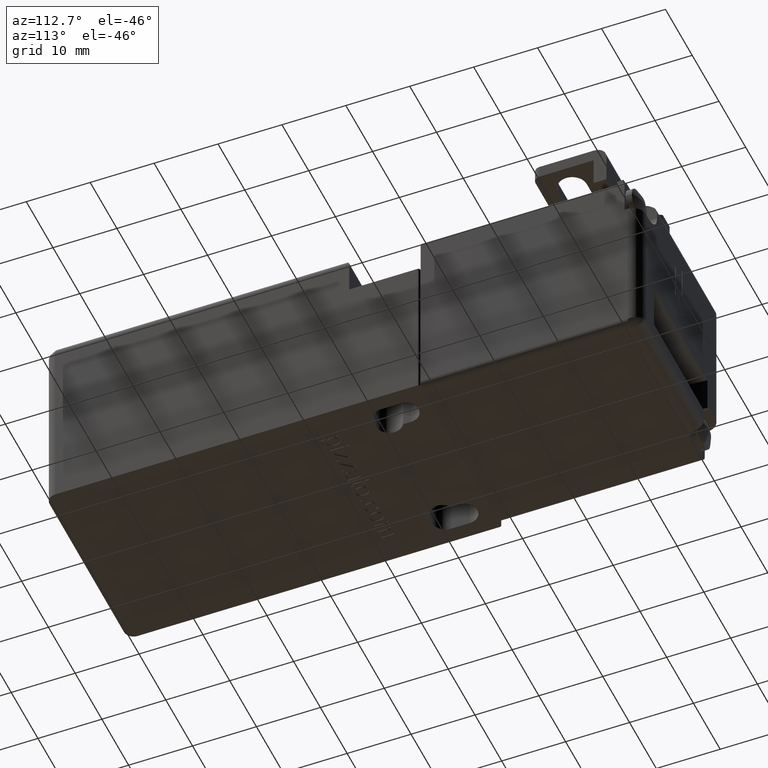
[diagram: clean part render]
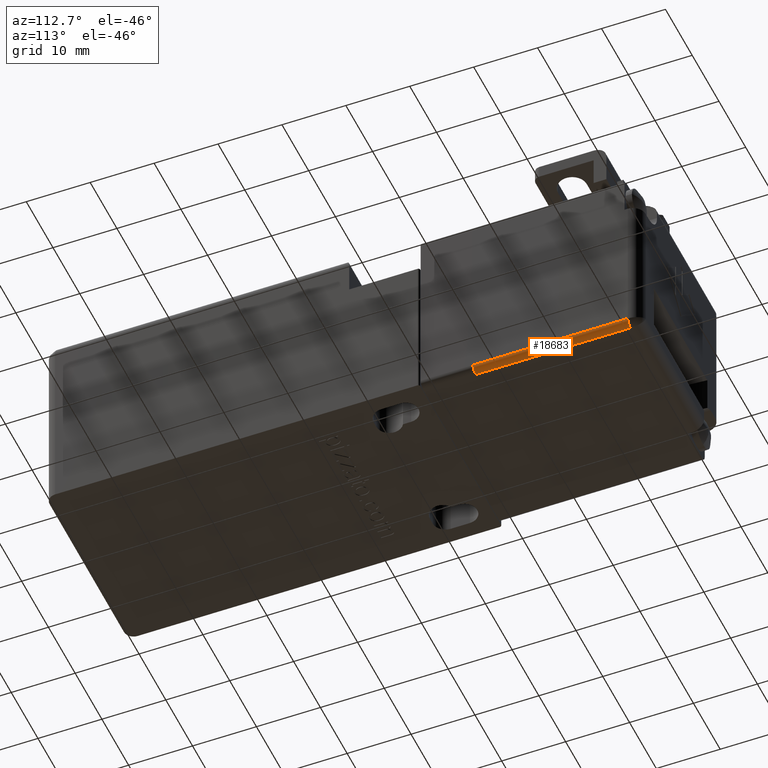
[diagram: same view with one face highlighted and labeled with its STEP entity id]
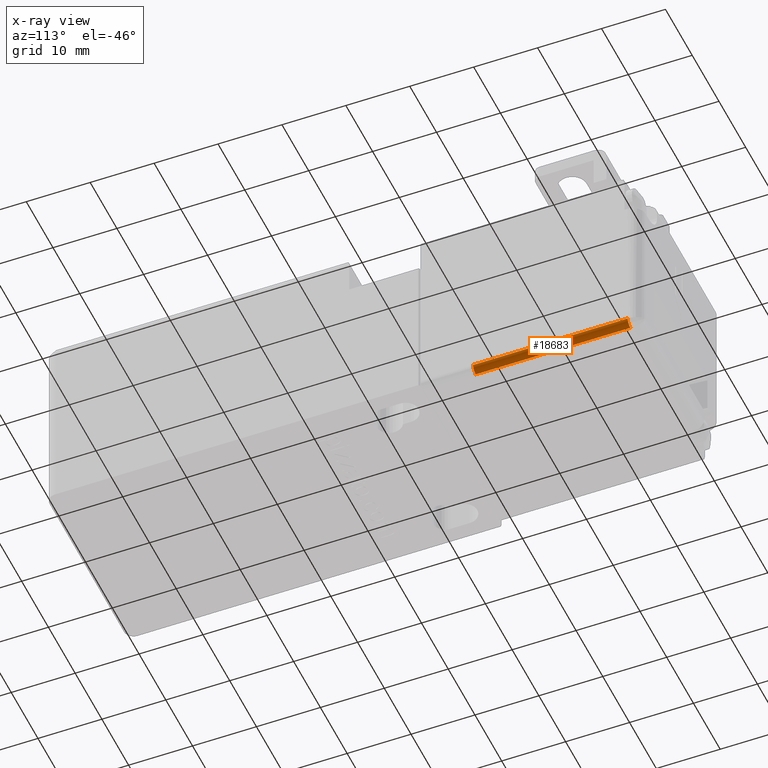
[diagram: x-ray of the same camera — body ghosted, the highlighted face saturated]
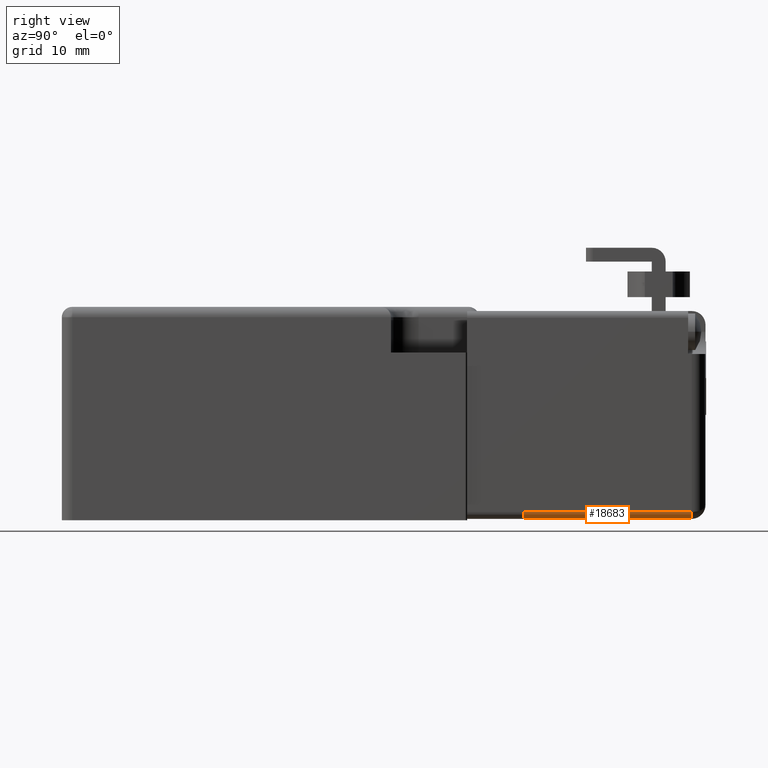
[diagram: same view with one face highlighted and labeled with its STEP entity id]
A machine part, auxiliary view. The second image highlights one B-rep face of the part: STEP entity #18683.
The next image is the same camera in x-ray: the body ghosted, the highlighted face saturated — about 0% of this face is hidden behind the body in this view.
A second angle (right view) of the same face is appended — the face is thin or edge-on in the first view.
In plain terms, the highlighted cylindrical surface (edge-blend (fillet) strip) has radius 1 mm, axis along (0, 1, 0).
Its self-contained STEP definition (entity closure, byte-faithful):
#17210=CARTESIAN_POINT('',(11.399999999999983,-24.200000000000006,-5.329071E-015));
#17211=VERTEX_POINT('',#17210);
#17218=CARTESIAN_POINT('',(12.399999999999986,-24.200000000000006,0.999999999999996));
#17219=VERTEX_POINT('',#17218);
#17220=CARTESIAN_POINT('',(11.399999999999983,-24.200000000000006,0.999999999999996));
#17221=DIRECTION('',(0.0,-1.0,0.0));
#17222=DIRECTION('',(-1.0,0.0,0.0));
#17223=AXIS2_PLACEMENT_3D('',#17220,#17221,#17222);
#17224=CIRCLE('',#17223,0.999999999999999);
#17225=EDGE_CURVE('',#17211,#17219,#17224,.T.);
#17742=CARTESIAN_POINT('',(12.399999999999995,0.0,1.000000000000005));
#17743=VERTEX_POINT('',#17742);
#17744=CARTESIAN_POINT('',(12.399999999999986,-24.200000000000006,0.999999999999996));
#17745=DIRECTION('',(0.0,1.0,0.0));
#17746=VECTOR('',#17745,24.200000000000006);
#17747=LINE('',#17744,#17746);
#17748=EDGE_CURVE('',#17219,#17743,#17747,.T.);
#17860=CARTESIAN_POINT('',(11.400000000000000,0.0,5.329071E-015));
#17861=VERTEX_POINT('',#17860);
#17868=CARTESIAN_POINT('',(11.399999999999983,0.0,-5.329071E-015));
#17869=DIRECTION('',(0.0,-1.0,0.0));
#17870=VECTOR('',#17869,24.200000000000006);
#17871=LINE('',#17868,#17870);
#17872=EDGE_CURVE('',#17861,#17211,#17871,.T.);
#18666=CARTESIAN_POINT('',(11.399999999999983,-24.200000010000007,0.999999999999996));
#18667=DIRECTION('',(0.0,1.0,0.0));
#18668=DIRECTION('',(-0.707106781186547,0.0,0.707106781186548));
#18669=AXIS2_PLACEMENT_3D('',#18666,#18667,#18668);
#18670=CYLINDRICAL_SURFACE('',#18669,0.999999999999999);
#18671=ORIENTED_EDGE('',*,*,#17872,.F.);
#18672=CARTESIAN_POINT('',(11.399999999999995,0.0,1.000000000000011));
#18673=DIRECTION('',(0.0,-1.0,0.0));
#18674=DIRECTION('',(-1.0,0.0,0.0));
#18675=AXIS2_PLACEMENT_3D('',#18672,#18673,#18674);
#18676=CIRCLE('',#18675,0.999999999999999);
#18677=EDGE_CURVE('',#17861,#17743,#18676,.T.);
#18678=ORIENTED_EDGE('',*,*,#18677,.T.);
#18679=ORIENTED_EDGE('',*,*,#17748,.F.);
#18680=ORIENTED_EDGE('',*,*,#17225,.F.);
#18681=EDGE_LOOP('',(#18671,#18678,#18679,#18680));
#18682=FACE_OUTER_BOUND('',#18681,.T.);
#18683=ADVANCED_FACE('',(#18682),#18670,.T.);